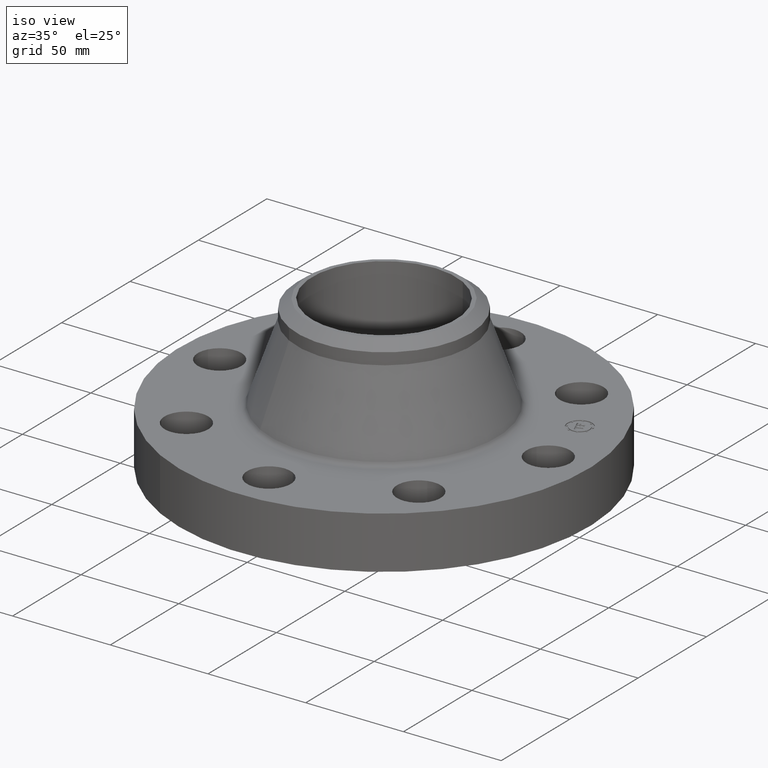
[diagram: clean part render]
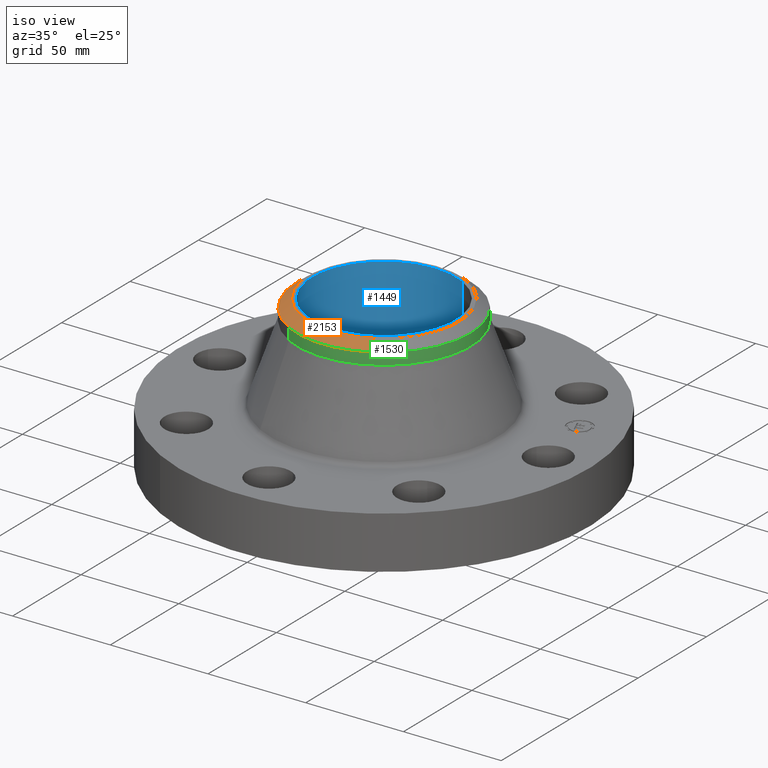
[diagram: same view with three faces highlighted in distinct colors, each labeled with its STEP entity id]
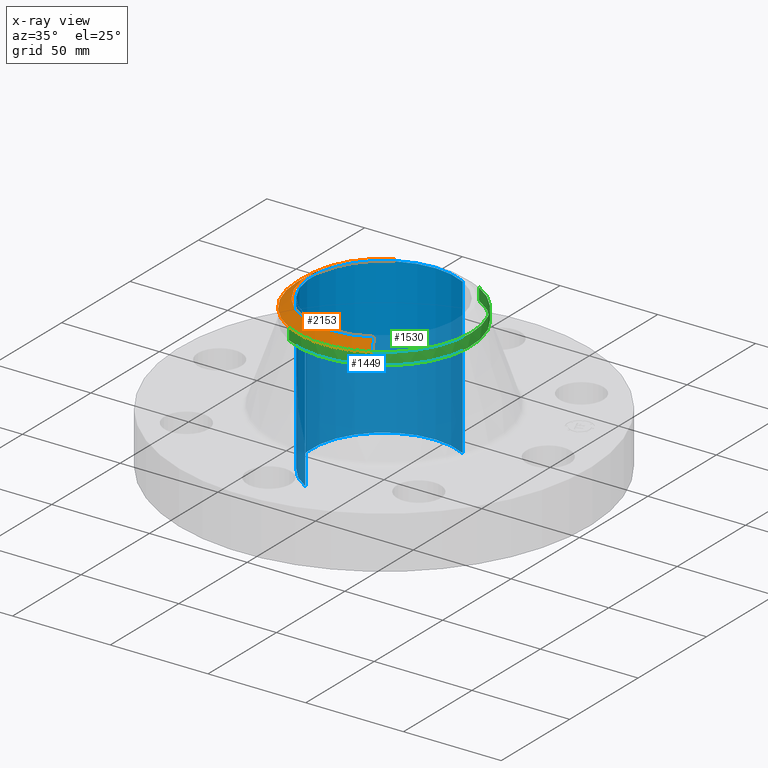
[diagram: x-ray of the same camera — body ghosted, the three highlighted faces saturated]
A machine part, iso view with three faces highlighted in distinct colors.
The next image is the same camera in x-ray (body ghosted, the three faces saturated) — at least one of them is partly hidden behind the body in this view.
Their STEP definitions:

[orange] entity #2153 — the highlighted conical surface has half-angle 52.5 deg.
#1478=AXIS2_PLACEMENT_3D('Circle Axis2P3D',#1476,#1477,$) ;
#1520=AXIS2_PLACEMENT_3D('Circle Axis2P3D',#1518,#1519,$) ;
#2112=AXIS2_PLACEMENT_3D('Circle Axis2P3D',#2110,#2111,$) ;
#2134=AXIS2_PLACEMENT_3D('Cone Axis2P3D',#2131,#2132,#2133) ;
#1473=CARTESIAN_POINT('Vertex',(-0.838994692563,-1.53576948332,2.89022135151)) ;
#1476=CARTESIAN_POINT('Axis2P3D Location',(0.,0.,2.89022135151)) ;
#1480=CARTESIAN_POINT('Vertex',(-0.838994692564,1.53576948332,2.89022135151)) ;
#1515=CARTESIAN_POINT('Vertex',(0.838994692564,-1.53576948332,2.89022135151)) ;
#1518=CARTESIAN_POINT('Axis2P3D Location',(0.,0.,2.89022135151)) ;
#2105=CARTESIAN_POINT('Vertex',(0.73291707339,-1.34159570387,3.06000000001)) ;
#2107=CARTESIAN_POINT('Vertex',(-0.732917073391,1.34159570387,3.06000000001)) ;
#2110=CARTESIAN_POINT('Axis2P3D Location',(1.28116589953E-011,9.66589887745E-012,3.06000000001)) ;
#2131=CARTESIAN_POINT('Axis2P3D Location',(0.,0.,3.06000000001)) ;
#2136=CARTESIAN_POINT('Line Origine',(0.785955882974,-1.43868259359,2.97511067575)) ;
#2141=CARTESIAN_POINT('Line Origine',(-0.785955882974,1.43868259359,2.97511067575)) ;
#1477=DIRECTION('Axis2P3D Direction',(-0.,0.,-0.0393700787402)) ;
#1519=DIRECTION('Axis2P3D Direction',(-0.,0.,-0.0393700787402)) ;
#2111=DIRECTION('Axis2P3D Direction',(0.,0.,-0.0393700787402)) ;
#2132=DIRECTION('Axis2P3D Direction',(-0.,-0.,-0.0393700787402)) ;
#2133=DIRECTION('Axis2P3D XDirection',(0.0188750212049,-0.0345504945626,0.)) ;
#2137=DIRECTION('Vector Direction',(0.014974561121,-0.02741075027,-0.023966985394)) ;
#2142=DIRECTION('Vector Direction',(-0.014974561121,0.02741075027,-0.023966985394)) ;
#2138=VECTOR('Line Direction',#2137,0.0393700787402) ;
#2143=VECTOR('Line Direction',#2142,0.0393700787402) ;
#2147=ORIENTED_EDGE('',*,*,#2140,.F.) ;
#2148=ORIENTED_EDGE('',*,*,#2114,.F.) ;
#2149=ORIENTED_EDGE('',*,*,#2145,.T.) ;
#2150=ORIENTED_EDGE('',*,*,#1482,.T.) ;
#2151=ORIENTED_EDGE('',*,*,#1522,.F.) ;
#2153=ADVANCED_FACE('PartBody',(#2152),#2135,.T.) ;
#1479=CIRCLE('generated circle',#1478,1.75000000001) ;
#1521=CIRCLE('generated circle',#1520,1.75000000001) ;
#2113=CIRCLE('generated circle',#2112,1.52874015748) ;
#2135=CONICAL_SURFACE('Cone',#2134,1.52874015749,0.916297857297) ;
#1482=EDGE_CURVE('',#1481,#1474,#1479,.F.) ;
#1522=EDGE_CURVE('',#1516,#1474,#1521,.T.) ;
#2114=EDGE_CURVE('',#2108,#2106,#2113,.F.) ;
#2140=EDGE_CURVE('',#2106,#1516,#2139,.T.) ;
#2145=EDGE_CURVE('',#2108,#1481,#2144,.T.) ;
#2146=EDGE_LOOP('',(#2147,#2148,#2149,#2150,#2151)) ;
#2152=FACE_OUTER_BOUND('',#2146,.T.) ;
#2139=LINE('Line',#2136,#2138) ;
#2144=LINE('Line',#2141,#2143) ;
#1474=VERTEX_POINT('',#1473) ;
#1481=VERTEX_POINT('',#1480) ;
#1516=VERTEX_POINT('',#1515) ;
#2106=VERTEX_POINT('',#2105) ;
#2108=VERTEX_POINT('',#2107) ;

[blue] entity #1449 — the highlighted cylindrical surface (partial cylindrical patch) has radius 36.83 mm, axis along (-0, 0, -1).
#1127=AXIS2_PLACEMENT_3D('Circle Axis2P3D',#1125,#1126,$) ;
#1436=AXIS2_PLACEMENT_3D('Cylinder Axis2P3D',#1433,#1434,#1435) ;
#1440=AXIS2_PLACEMENT_3D('Circle Axis2P3D',#1438,#1439,$) ;
#1120=CARTESIAN_POINT('Vertex',(0.695167030978,1.27249471477,-0.0625000000003)) ;
#1122=CARTESIAN_POINT('Vertex',(-0.695167030981,-1.27249471475,-0.0625000000234)) ;
#1125=CARTESIAN_POINT('Axis2P3D Location',(0.,7.06682306723E-012,-0.0625000000003)) ;
#1404=CARTESIAN_POINT('Vertex',(0.695167030981,1.27249471475,3.06000000004)) ;
#1406=CARTESIAN_POINT('Vertex',(-0.695167030978,-1.27249471473,3.06000000001)) ;
#1409=CARTESIAN_POINT('Line Origine',(0.695167030981,1.27249471475,1.49875000001)) ;
#1414=CARTESIAN_POINT('Line Origine',(-0.695167030981,-1.27249471475,1.49875000001)) ;
#1433=CARTESIAN_POINT('Axis2P3D Location',(0.,0.,1.49875000001)) ;
#1438=CARTESIAN_POINT('Axis2P3D Location',(0.,0.,3.06000000004)) ;
#1126=DIRECTION('Axis2P3D Direction',(0.,0.,-0.0393700787402)) ;
#1410=DIRECTION('Vector Direction',(0.,0.,-0.0393700787402)) ;
#1415=DIRECTION('Vector Direction',(0.,0.,-0.0393700787402)) ;
#1434=DIRECTION('Axis2P3D Direction',(-0.,0.,-0.0393700787402)) ;
#1435=DIRECTION('Axis2P3D XDirection',(-0.0188750212048,-0.0345504945626,0.)) ;
#1439=DIRECTION('Axis2P3D Direction',(-0.,0.,-0.0393700787402)) ;
#1411=VECTOR('Line Direction',#1410,0.0393700787402) ;
#1416=VECTOR('Line Direction',#1415,0.0393700787402) ;
#1444=ORIENTED_EDGE('',*,*,#1442,.F.) ;
#1445=ORIENTED_EDGE('',*,*,#1418,.T.) ;
#1446=ORIENTED_EDGE('',*,*,#1129,.T.) ;
#1447=ORIENTED_EDGE('',*,*,#1413,.F.) ;
#1449=ADVANCED_FACE('PartBody',(#1448),#1437,.F.) ;
#1128=CIRCLE('generated circle',#1127,1.45000000002) ;
#1441=CIRCLE('generated circle',#1440,1.45000000001) ;
#1437=CYLINDRICAL_SURFACE('generated cylinder',#1436,1.45000000001) ;
#1129=EDGE_CURVE('',#1123,#1121,#1128,.T.) ;
#1413=EDGE_CURVE('',#1405,#1121,#1412,.T.) ;
#1418=EDGE_CURVE('',#1407,#1123,#1417,.T.) ;
#1442=EDGE_CURVE('',#1407,#1405,#1441,.T.) ;
#1443=EDGE_LOOP('',(#1444,#1445,#1446,#1447)) ;
#1448=FACE_OUTER_BOUND('',#1443,.T.) ;
#1412=LINE('Line',#1409,#1411) ;
#1417=LINE('Line',#1414,#1416) ;
#1121=VERTEX_POINT('',#1120) ;
#1123=VERTEX_POINT('',#1122) ;
#1405=VERTEX_POINT('',#1404) ;
#1407=VERTEX_POINT('',#1406) ;

[green] entity #1530 — the highlighted cylindrical surface (partial cylindrical patch) has radius 44.45 mm, axis along (-0, 0, -1).
#1187=AXIS2_PLACEMENT_3D('Circle Axis2P3D',#1185,#1186,$) ;
#1509=AXIS2_PLACEMENT_3D('Cylinder Axis2P3D',#1506,#1507,#1508) ;
#1513=AXIS2_PLACEMENT_3D('Circle Axis2P3D',#1511,#1512,$) ;
#1520=AXIS2_PLACEMENT_3D('Circle Axis2P3D',#1518,#1519,$) ;
#1151=CARTESIAN_POINT('Vertex',(-0.838994692563,-1.53576948332,2.65400087905)) ;
#1158=CARTESIAN_POINT('Vertex',(0.838994692562,1.53576948332,2.65400087905)) ;
#1185=CARTESIAN_POINT('Axis2P3D Location',(0.,0.,2.65400087905)) ;
#1462=CARTESIAN_POINT('Line Origine',(0.838994692563,1.53576948332,2.77211111528)) ;
#1466=CARTESIAN_POINT('Vertex',(0.838994692563,1.53576948332,2.89022135151)) ;
#1469=CARTESIAN_POINT('Line Origine',(-0.838994692563,-1.53576948332,2.77211111528)) ;
#1473=CARTESIAN_POINT('Vertex',(-0.838994692563,-1.53576948332,2.89022135151)) ;
#1506=CARTESIAN_POINT('Axis2P3D Location',(0.,0.,1.49875000001)) ;
#1511=CARTESIAN_POINT('Axis2P3D Location',(0.,0.,2.89022135151)) ;
#1515=CARTESIAN_POINT('Vertex',(0.838994692564,-1.53576948332,2.89022135151)) ;
#1518=CARTESIAN_POINT('Axis2P3D Location',(0.,0.,2.89022135151)) ;
#1186=DIRECTION('Axis2P3D Direction',(-0.,0.,-0.0393700787402)) ;
#1463=DIRECTION('Vector Direction',(0.,0.,-0.0393700787402)) ;
#1470=DIRECTION('Vector Direction',(0.,0.,-0.0393700787402)) ;
#1507=DIRECTION('Axis2P3D Direction',(-0.,0.,-0.0393700787402)) ;
#1508=DIRECTION('Axis2P3D XDirection',(0.0188750212049,0.0345504945626,0.)) ;
#1512=DIRECTION('Axis2P3D Direction',(-0.,0.,-0.0393700787402)) ;
#1519=DIRECTION('Axis2P3D Direction',(-0.,0.,-0.0393700787402)) ;
#1464=VECTOR('Line Direction',#1463,0.0393700787402) ;
#1471=VECTOR('Line Direction',#1470,0.0393700787402) ;
#1524=ORIENTED_EDGE('',*,*,#1475,.F.) ;
#1525=ORIENTED_EDGE('',*,*,#1189,.F.) ;
#1526=ORIENTED_EDGE('',*,*,#1468,.T.) ;
#1527=ORIENTED_EDGE('',*,*,#1517,.F.) ;
#1528=ORIENTED_EDGE('',*,*,#1522,.T.) ;
#1530=ADVANCED_FACE('PartBody',(#1529),#1510,.T.) ;
#1188=CIRCLE('generated circle',#1187,1.75000000001) ;
#1514=CIRCLE('generated circle',#1513,1.75000000001) ;
#1521=CIRCLE('generated circle',#1520,1.75000000001) ;
#1510=CYLINDRICAL_SURFACE('generated cylinder',#1509,1.75000000001) ;
#1189=EDGE_CURVE('',#1159,#1152,#1188,.T.) ;
#1468=EDGE_CURVE('',#1159,#1467,#1465,.F.) ;
#1475=EDGE_CURVE('',#1152,#1474,#1472,.F.) ;
#1517=EDGE_CURVE('',#1516,#1467,#1514,.F.) ;
#1522=EDGE_CURVE('',#1516,#1474,#1521,.T.) ;
#1523=EDGE_LOOP('',(#1524,#1525,#1526,#1527,#1528)) ;
#1529=FACE_OUTER_BOUND('',#1523,.T.) ;
#1465=LINE('Line',#1462,#1464) ;
#1472=LINE('Line',#1469,#1471) ;
#1152=VERTEX_POINT('',#1151) ;
#1159=VERTEX_POINT('',#1158) ;
#1467=VERTEX_POINT('',#1466) ;
#1474=VERTEX_POINT('',#1473) ;
#1516=VERTEX_POINT('',#1515) ;